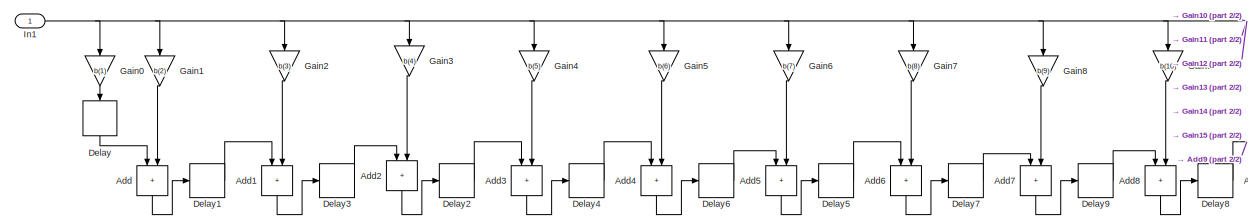
[diagram: root canvas - part 1/2, middle left region]
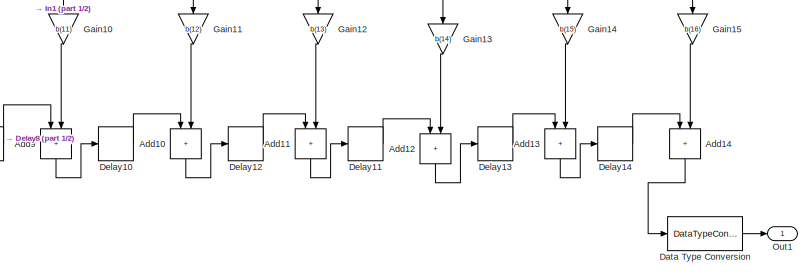
[diagram: root canvas - part 2/2, right side, full height]
MODEL slx_8cec93f77d1e
KIND model
CONFIG AbsTol = auto
CONFIG EnableMultiTasking = off
CONFIG FixedStep = auto
CONFIG MaxStep = auto
CONFIG MinStep = auto
CONFIG RelTol = 1e-3
CONFIG SampleTimeConstraint = Unconstrained
CONFIG SolverName = FixedStepDiscrete
CONFIG StartTime = 0.0
CONFIG StopTime = 0.99987
BLOCK [Sum] Add
  AccumDataTypeStr = fixdt(1,32,26)
  IconShape = rectangular
  NameLocation = left
  OutDataTypeStr = fixdt(1,32,26)
BLOCK [Sum] Add1
  AccumDataTypeStr = fixdt(1,32,26)
  IconShape = rectangular
  NameLocation = left
  OutDataTypeStr = fixdt(1,32,26)
BLOCK [Sum] Add10
  AccumDataTypeStr = fixdt(1,32,26)
  IconShape = rectangular
  NameLocation = left
  OutDataTypeStr = fixdt(1,32,26)
BLOCK [Sum] Add11
  AccumDataTypeStr = fixdt(1,32,26)
  IconShape = rectangular
  NameLocation = left
  OutDataTypeStr = fixdt(1,32,26)
BLOCK [Sum] Add12
  AccumDataTypeStr = fixdt(1,32,26)
  IconShape = rectangular
  NameLocation = left
  OutDataTypeStr = fixdt(1,32,26)
BLOCK [Sum] Add13
  AccumDataTypeStr = fixdt(1,32,26)
  IconShape = rectangular
  NameLocation = left
  OutDataTypeStr = fixdt(1,32,26)
BLOCK [Sum] Add14
  AccumDataTypeStr = fixdt(1,32,26)
  IconShape = rectangular
  NameLocation = left
  OutDataTypeStr = fixdt(1,32,26)
BLOCK [Sum] Add2
  AccumDataTypeStr = fixdt(1,32,26)
  IconShape = rectangular
  NameLocation = left
  OutDataTypeStr = fixdt(1,32,26)
BLOCK [Sum] Add3
  AccumDataTypeStr = fixdt(1,32,26)
  IconShape = rectangular
  NameLocation = left
  OutDataTypeStr = fixdt(1,32,26)
BLOCK [Sum] Add4
  AccumDataTypeStr = fixdt(1,32,26)
  IconShape = rectangular
  NameLocation = left
  OutDataTypeStr = fixdt(1,32,26)
BLOCK [Sum] Add5
  AccumDataTypeStr = fixdt(1,32,26)
  IconShape = rectangular
  NameLocation = left
  OutDataTypeStr = fixdt(1,32,26)
BLOCK [Sum] Add6
  AccumDataTypeStr = fixdt(1,32,26)
  IconShape = rectangular
  NameLocation = left
  OutDataTypeStr = fixdt(1,32,26)
BLOCK [Sum] Add7
  AccumDataTypeStr = fixdt(1,32,26)
  IconShape = rectangular
  NameLocation = left
  OutDataTypeStr = fixdt(1,32,26)
BLOCK [Sum] Add8
  AccumDataTypeStr = fixdt(1,32,26)
  IconShape = rectangular
  NameLocation = left
  OutDataTypeStr = fixdt(1,32,26)
BLOCK [Sum] Add9
  AccumDataTypeStr = fixdt(1,32,26)
  IconShape = rectangular
  NameLocation = left
  OutDataTypeStr = fixdt(1,32,26)
BLOCK [DataTypeConversion] Data Type Conversion
  OutDataTypeStr = fixdt(1,16,12)
  RndMeth = Floor
  SaturateOnIntegerOverflow = off
BLOCK [Delay] Delay
  DelayLength = 1
  InputPortMap = u0
  NameLocation = left
BLOCK [Delay] Delay1
  DelayLength = 1
  InputPortMap = u0
BLOCK [Delay] Delay10
  DelayLength = 1
  InputPortMap = u0
BLOCK [Delay] Delay11
  DelayLength = 1
  InputPortMap = u0
BLOCK [Delay] Delay12
  DelayLength = 1
  InputPortMap = u0
BLOCK [Delay] Delay13
  DelayLength = 1
  InputPortMap = u0
BLOCK [Delay] Delay14
  DelayLength = 1
  InputPortMap = u0
BLOCK [Delay] Delay2
  DelayLength = 1
  InputPortMap = u0
BLOCK [Delay] Delay3
  DelayLength = 1
  InputPortMap = u0
BLOCK [Delay] Delay4
  DelayLength = 1
  InputPortMap = u0
BLOCK [Delay] Delay5
  DelayLength = 1
  InputPortMap = u0
BLOCK [Delay] Delay6
  DelayLength = 1
  InputPortMap = u0
BLOCK [Delay] Delay7
  DelayLength = 1
  InputPortMap = u0
BLOCK [Delay] Delay8
  DelayLength = 1
  InputPortMap = u0
BLOCK [Delay] Delay9
  DelayLength = 1
  InputPortMap = u0
BLOCK [Gain] Gain0
  Gain = b(1)
  NameLocation = left
  OutDataTypeStr = fixdt(1,Wc,Dc)
BLOCK [Gain] Gain1
  Gain = b(2)
  NameLocation = left
  OutDataTypeStr = fixdt(1,Wc,Dc)
BLOCK [Gain] Gain10
  Gain = b(11)
  NameLocation = left
  OutDataTypeStr = fixdt(1,Wc,Dc)
BLOCK [Gain] Gain11
  Gain = b(12)
  NameLocation = left
  OutDataTypeStr = fixdt(1,Wc,Dc)
BLOCK [Gain] Gain12
  Gain = b(13)
  NameLocation = left
  OutDataTypeStr = fixdt(1,Wc,Dc)
BLOCK [Gain] Gain13
  Gain = b(14)
  NameLocation = left
  OutDataTypeStr = fixdt(1,Wc,Dc)
BLOCK [Gain] Gain14
  Gain = b(15)
  NameLocation = left
  OutDataTypeStr = fixdt(1,Wc,Dc)
BLOCK [Gain] Gain15
  Gain = b(16)
  NameLocation = left
  OutDataTypeStr = fixdt(1,Wc,Dc)
BLOCK [Gain] Gain2
  Gain = b(3)
  NameLocation = left
  OutDataTypeStr = fixdt(1,Wc,Dc)
BLOCK [Gain] Gain3
  Gain = b(4)
  NameLocation = left
  OutDataTypeStr = fixdt(1,Wc,Dc)
BLOCK [Gain] Gain4
  Gain = b(5)
  NameLocation = left
  OutDataTypeStr = fixdt(1,Wc,Dc)
BLOCK [Gain] Gain5
  Gain = b(6)
  NameLocation = left
  OutDataTypeStr = fixdt(1,Wc,Dc)
BLOCK [Gain] Gain6
  Gain = b(7)
  NameLocation = left
  OutDataTypeStr = fixdt(1,Wc,Dc)
BLOCK [Gain] Gain7
  Gain = b(8)
  NameLocation = left
  OutDataTypeStr = fixdt(1,Wc,Dc)
BLOCK [Gain] Gain8
  Gain = b(9)
  NameLocation = left
  OutDataTypeStr = fixdt(1,Wc,Dc)
BLOCK [Gain] Gain9
  Gain = b(10)
  NameLocation = left
  OutDataTypeStr = fixdt(1,Wc,Dc)
BLOCK [Inport] In1
  OutDataTypeStr = fixdt(1,16,12)
  PortDimensions = 1
BLOCK [Outport] Out1
  OutDataTypeStr = fixdt(1,16,12)
LINE Add10:1 -> Delay12:1
LINE Add11:1 -> Delay11:1
LINE Add12:1 -> Delay13:1
LINE Add13:1 -> Delay14:1
LINE Add14:1 -> Data Type Conversion:1
LINE Add1:1 -> Delay3:1
LINE Add2:1 -> Delay2:1
LINE Add3:1 -> Delay4:1
LINE Add4:1 -> Delay6:1
LINE Add5:1 -> Delay5:1
LINE Add6:1 -> Delay7:1
LINE Add7:1 -> Delay9:1
LINE Add8:1 -> Delay8:1
LINE Add9:1 -> Delay10:1
LINE Add:1 -> Delay1:1
LINE Data Type Conversion:1 -> Out1:1
LINE Delay10:1 -> Add10:1
LINE Delay11:1 -> Add12:1
LINE Delay12:1 -> Add11:1
LINE Delay13:1 -> Add13:1
LINE Delay14:1 -> Add14:1
LINE Delay1:1 -> Add1:1
LINE Delay2:1 -> Add3:1
LINE Delay3:1 -> Add2:1
LINE Delay4:1 -> Add4:1
LINE Delay5:1 -> Add6:1
LINE Delay6:1 -> Add5:1
LINE Delay7:1 -> Add7:1
LINE Delay8:1 -> Add9:1
LINE Delay9:1 -> Add8:1
LINE Delay:1 -> Add:1
LINE Gain0:1 -> Delay:1
LINE Gain10:1 -> Add9:2
LINE Gain11:1 -> Add10:2
LINE Gain12:1 -> Add11:2
LINE Gain13:1 -> Add12:2
LINE Gain14:1 -> Add13:2
LINE Gain15:1 -> Add14:2
LINE Gain1:1 -> Add:2
LINE Gain2:1 -> Add1:2
LINE Gain3:1 -> Add2:2
LINE Gain4:1 -> Add3:2
LINE Gain5:1 -> Add4:2
LINE Gain6:1 -> Add5:2
LINE Gain7:1 -> Add6:2
LINE Gain8:1 -> Add7:2
LINE Gain9:1 -> Add8:2
NET In1:1 -> Gain0:1, Gain10:1, Gain11:1, Gain12:1, Gain13:1, Gain14:1, Gain15:1, Gain1:1, Gain2:1, Gain3:1, Gain4:1, Gain5:1, Gain6:1, Gain7:1, Gain8:1, Gain9:1
note: NET lines group one-source signal fan-out (src -> all destinations, sorted); 1:1 wires keep LINE
